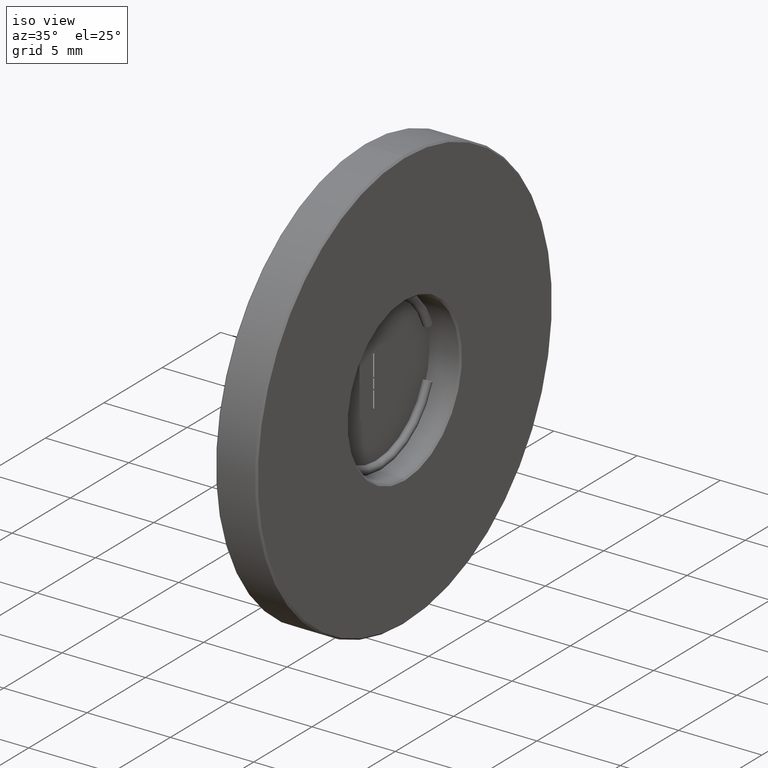
[diagram: clean part render]
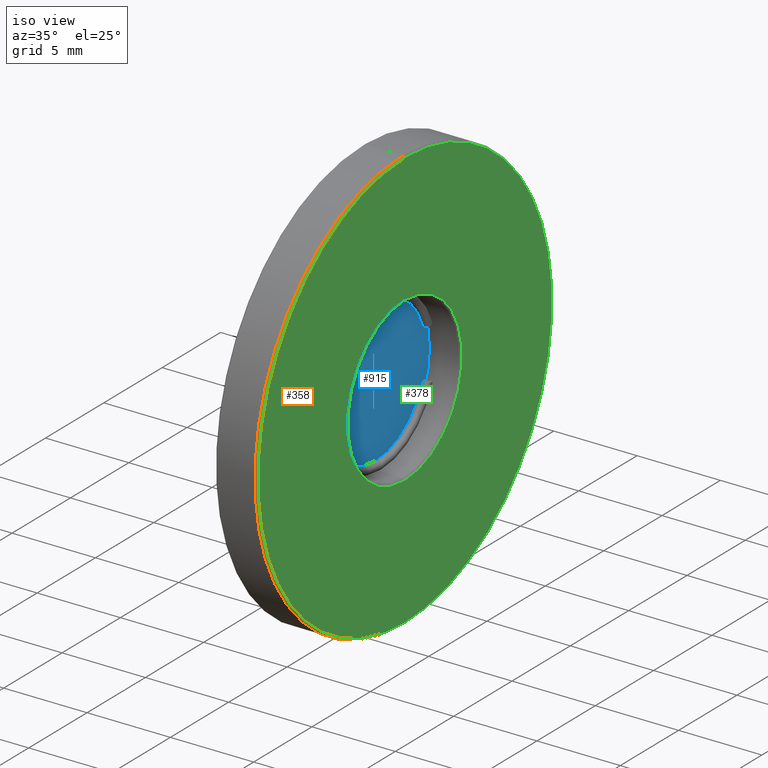
[diagram: same view with three faces highlighted in distinct colors, each labeled with its STEP entity id]
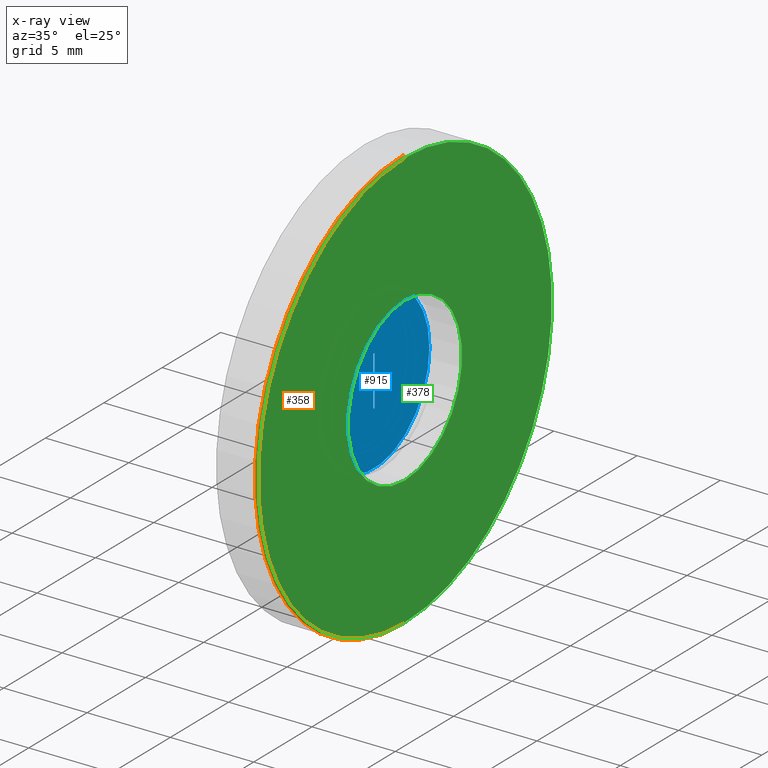
[diagram: x-ray of the same camera — body ghosted, the three highlighted faces saturated]
A machine part, iso view with three faces highlighted in distinct colors.
The next image is the same camera in x-ray (body ghosted, the three faces saturated) — at least one of them is partly hidden behind the body in this view.
Their STEP definitions:

[orange] entity #358 — the highlighted conical surface has half-angle 45 deg.
#5 = VECTOR ( 'NONE', #566, 1000.000000000000000 ) ;
#28 = CARTESIAN_POINT ( 'NONE',  ( -2.434863851252999645, 1.436758841085000071, 25.39999999999999858 ) ) ;
#61 = VERTEX_POINT ( 'NONE', #554 ) ;
#69 = AXIS2_PLACEMENT_3D ( 'NONE', #887, #94, #226 ) ;
#88 = VECTOR ( 'NONE', #273, 1000.000000000000000 ) ;
#94 = DIRECTION ( 'NONE',  ( 1.000000000000000000, 0.000000000000000000, 0.000000000000000000 ) ) ;
#179 = DIRECTION ( 'NONE',  ( 0.000000000000000000, 0.000000000000000000, 1.000000000000000000 ) ) ;
#226 = DIRECTION ( 'NONE',  ( 0.000000000000000000, 0.000000000000000000, -1.000000000000000000 ) ) ;
#254 = CARTESIAN_POINT ( 'NONE',  ( -2.534863851253000178, 1.436758841085001626, 12.69999999999999929 ) ) ;
#268 = EDGE_CURVE ( 'NONE', #61, #642, #359, .T. ) ;
#273 = DIRECTION ( 'NONE',  ( -0.7071067811865415775, 0.000000000000000000, 0.7071067811865535679 ) ) ;
#335 = CARTESIAN_POINT ( 'NONE',  ( -2.434863851252999645, 1.436758841085001626, 12.79999999999999893 ) ) ;
#347 = LINE ( 'NONE', #421, #5 ) ;
#358 = ADVANCED_FACE ( 'NONE', ( #558 ), #589, .T. ) ;
#359 = CIRCLE ( 'NONE', #69, 12.59999999999999964 ) ;
#374 = VERTEX_POINT ( 'NONE', #757 ) ;
#416 = CARTESIAN_POINT ( 'NONE',  ( -2.534863851253000178, 1.436758841085000071, 25.39999999999999858 ) ) ;
#421 = CARTESIAN_POINT ( 'NONE',  ( -2.434863851252999645, 1.436758841085001626, 12.79999999999999893 ) ) ;
#466 = DIRECTION ( 'NONE',  ( -1.000000000000000000, 0.000000000000000000, 0.000000000000000000 ) ) ;
#499 = AXIS2_PLACEMENT_3D ( 'NONE', #416, #702, #910 ) ;
#527 = EDGE_CURVE ( 'NONE', #642, #722, #347, .T. ) ;
#554 = CARTESIAN_POINT ( 'NONE',  ( -2.434863851252999645, 1.436758841085000071, 38.00000000000000000 ) ) ;
#558 = FACE_OUTER_BOUND ( 'NONE', #726, .T. ) ;
#566 = DIRECTION ( 'NONE',  ( -0.7071067811865415775, 8.659560562355003116E-17, -0.7071067811865535679 ) ) ;
#589 = CONICAL_SURFACE ( 'NONE', #720, 12.59999999999999964, 0.7853981633974568277 ) ;
#634 = LINE ( 'NONE', #929, #88 ) ;
#642 = VERTEX_POINT ( 'NONE', #335 ) ;
#702 = DIRECTION ( 'NONE',  ( -1.000000000000000000, 0.000000000000000000, 0.000000000000000000 ) ) ;
#706 = ORIENTED_EDGE ( 'NONE', *, *, #268, .F. ) ;
#717 = EDGE_CURVE ( 'NONE', #722, #374, #825, .T. ) ;
#720 = AXIS2_PLACEMENT_3D ( 'NONE', #28, #466, #179 ) ;
#722 = VERTEX_POINT ( 'NONE', #254 ) ;
#726 = EDGE_LOOP ( 'NONE', ( #815, #706, #861, #733 ) ) ;
#733 = ORIENTED_EDGE ( 'NONE', *, *, #717, .F. ) ;
#736 = EDGE_CURVE ( 'NONE', #61, #374, #634, .T. ) ;
#757 = CARTESIAN_POINT ( 'NONE',  ( -2.534863851253000178, 1.436758841085000071, 38.09999999999999432 ) ) ;
#815 = ORIENTED_EDGE ( 'NONE', *, *, #527, .F. ) ;
#825 = CIRCLE ( 'NONE', #499, 12.69999999999999929 ) ;
#861 = ORIENTED_EDGE ( 'NONE', *, *, #736, .T. ) ;
#887 = CARTESIAN_POINT ( 'NONE',  ( -2.434863851252999645, 1.436758841085000071, 25.39999999999999858 ) ) ;
#910 = DIRECTION ( 'NONE',  ( 0.000000000000000000, 0.000000000000000000, -1.000000000000000000 ) ) ;
#929 = CARTESIAN_POINT ( 'NONE',  ( -2.434863851252999645, 1.436758841085000071, 38.00000000000000000 ) ) ;

[blue] entity #915 — the highlighted planar face has unit normal (1, 0, 0).
#53 = CARTESIAN_POINT ( 'NONE',  ( -4.284863851253000178, 1.486758841084999894, 26.89999999999999858 ) ) ;
#63 = LINE ( 'NONE', #645, #795 ) ;
#79 = ORIENTED_EDGE ( 'NONE', *, *, #476, .F. ) ;
#82 = CARTESIAN_POINT ( 'NONE',  ( -4.284863851253000178, 1.436758841085000071, 25.39999999999999858 ) ) ;
#97 = EDGE_CURVE ( 'NONE', #297, #154, #321, .T. ) ;
#146 = EDGE_CURVE ( 'NONE', #873, #425, #944, .T. ) ;
#154 = VERTEX_POINT ( 'NONE', #600 ) ;
#168 = AXIS2_PLACEMENT_3D ( 'NONE', #400, #924, #473 ) ;
#172 = CARTESIAN_POINT ( 'NONE',  ( -4.284863851253000178, 6.186758841085000071, 25.39999999999999858 ) ) ;
#186 = EDGE_CURVE ( 'NONE', #731, #297, #443, .T. ) ;
#187 = CARTESIAN_POINT ( 'NONE',  ( -4.284863851253000178, 1.436758841085000071, 25.39999999999999858 ) ) ;
#241 = DIRECTION ( 'NONE',  ( 0.000000000000000000, -1.000000000000000000, 0.000000000000000000 ) ) ;
#243 = FACE_BOUND ( 'NONE', #721, .T. ) ;
#274 = AXIS2_PLACEMENT_3D ( 'NONE', #187, #540, #395 ) ;
#297 = VERTEX_POINT ( 'NONE', #474 ) ;
#301 = VERTEX_POINT ( 'NONE', #906 ) ;
#321 = LINE ( 'NONE', #678, #650 ) ;
#330 = CARTESIAN_POINT ( 'NONE',  ( -4.284863851253000178, -3.313241158914999929, 25.39999999999999858 ) ) ;
#344 = ORIENTED_EDGE ( 'NONE', *, *, #468, .F. ) ;
#354 = DIRECTION ( 'NONE',  ( 0.000000000000000000, 1.000000000000000000, 0.000000000000000000 ) ) ;
#362 = AXIS2_PLACEMENT_3D ( 'NONE', #82, #514, #241 ) ;
#395 = DIRECTION ( 'NONE',  ( 0.000000000000000000, 0.000000000000000000, -1.000000000000000000 ) ) ;
#400 = CARTESIAN_POINT ( 'NONE',  ( -4.284863851253000178, 1.436758841085000071, 25.39999999999999858 ) ) ;
#425 = VERTEX_POINT ( 'NONE', #330 ) ;
#440 = VECTOR ( 'NONE', #609, 1000.000000000000000 ) ;
#442 = EDGE_LOOP ( 'NONE', ( #605, #816 ) ) ;
#443 = LINE ( 'NONE', #891, #440 ) ;
#468 = EDGE_CURVE ( 'NONE', #301, #731, #576, .T. ) ;
#473 = DIRECTION ( 'NONE',  ( 0.000000000000000000, -1.000000000000000000, 0.000000000000000000 ) ) ;
#474 = CARTESIAN_POINT ( 'NONE',  ( -4.284863851253000178, 1.386758841085000027, 26.89999999999999858 ) ) ;
#476 = EDGE_CURVE ( 'NONE', #154, #301, #63, .T. ) ;
#487 = ORIENTED_EDGE ( 'NONE', *, *, #186, .F. ) ;
#514 = DIRECTION ( 'NONE',  ( 1.000000000000000000, 0.000000000000000000, 0.000000000000000000 ) ) ;
#540 = DIRECTION ( 'NONE',  ( 1.000000000000000000, 0.000000000000000000, 0.000000000000000000 ) ) ;
#556 = FACE_OUTER_BOUND ( 'NONE', #442, .T. ) ;
#571 = EDGE_CURVE ( 'NONE', #425, #873, #830, .T. ) ;
#576 = LINE ( 'NONE', #856, #700 ) ;
#600 = CARTESIAN_POINT ( 'NONE',  ( -4.284863851253000178, 1.386758841085000027, 23.89999999999999858 ) ) ;
#605 = ORIENTED_EDGE ( 'NONE', *, *, #146, .T. ) ;
#609 = DIRECTION ( 'NONE',  ( 0.000000000000000000, -1.000000000000000000, 0.000000000000000000 ) ) ;
#645 = CARTESIAN_POINT ( 'NONE',  ( -4.284863851253000178, 1.486758841084999894, 23.89999999999999858 ) ) ;
#650 = VECTOR ( 'NONE', #843, 1000.000000000000000 ) ;
#678 = CARTESIAN_POINT ( 'NONE',  ( -4.284863851253000178, 1.386758841085000027, 26.89999999999999858 ) ) ;
#700 = VECTOR ( 'NONE', #936, 1000.000000000000000 ) ;
#721 = EDGE_LOOP ( 'NONE', ( #344, #79, #938, #487 ) ) ;
#731 = VERTEX_POINT ( 'NONE', #53 ) ;
#795 = VECTOR ( 'NONE', #354, 1000.000000000000000 ) ;
#816 = ORIENTED_EDGE ( 'NONE', *, *, #571, .T. ) ;
#830 = CIRCLE ( 'NONE', #168, 4.750000000000000000 ) ;
#834 = PLANE ( 'NONE',  #274 ) ;
#843 = DIRECTION ( 'NONE',  ( 0.000000000000000000, 0.000000000000000000, -1.000000000000000000 ) ) ;
#856 = CARTESIAN_POINT ( 'NONE',  ( -4.284863851253000178, 1.486758841084999894, 26.89999999999999858 ) ) ;
#873 = VERTEX_POINT ( 'NONE', #172 ) ;
#891 = CARTESIAN_POINT ( 'NONE',  ( -4.284863851253000178, 1.486758841084999894, 26.89999999999999858 ) ) ;
#906 = CARTESIAN_POINT ( 'NONE',  ( -4.284863851253000178, 1.486758841084999894, 23.89999999999999858 ) ) ;
#915 = ADVANCED_FACE ( 'NONE', ( #243, #556 ), #834, .T. ) ;
#924 = DIRECTION ( 'NONE',  ( 1.000000000000000000, 0.000000000000000000, 0.000000000000000000 ) ) ;
#936 = DIRECTION ( 'NONE',  ( 0.000000000000000000, 0.000000000000000000, 1.000000000000000000 ) ) ;
#938 = ORIENTED_EDGE ( 'NONE', *, *, #97, .F. ) ;
#944 = CIRCLE ( 'NONE', #362, 4.750000000000000000 ) ;

[green] entity #378 — the highlighted planar face has unit normal (1, 0, 0).
#24 = EDGE_CURVE ( 'NONE', #137, #934, #270, .T. ) ;
#32 = PLANE ( 'NONE',  #509 ) ;
#49 = FACE_BOUND ( 'NONE', #352, .T. ) ;
#61 = VERTEX_POINT ( 'NONE', #554 ) ;
#69 = AXIS2_PLACEMENT_3D ( 'NONE', #887, #94, #226 ) ;
#78 = CARTESIAN_POINT ( 'NONE',  ( -2.434863851252999645, 1.436758841085000071, 20.49999999999999645 ) ) ;
#94 = DIRECTION ( 'NONE',  ( 1.000000000000000000, 0.000000000000000000, 0.000000000000000000 ) ) ;
#132 = CARTESIAN_POINT ( 'NONE',  ( -2.434863851252999645, 1.436758841085000071, 25.39999999999999858 ) ) ;
#137 = VERTEX_POINT ( 'NONE', #78 ) ;
#209 = AXIS2_PLACEMENT_3D ( 'NONE', #480, #840, #493 ) ;
#223 = DIRECTION ( 'NONE',  ( -1.000000000000000000, 0.000000000000000000, 0.000000000000000000 ) ) ;
#226 = DIRECTION ( 'NONE',  ( 0.000000000000000000, 0.000000000000000000, -1.000000000000000000 ) ) ;
#255 = DIRECTION ( 'NONE',  ( 1.000000000000000000, 0.000000000000000000, 0.000000000000000000 ) ) ;
#268 = EDGE_CURVE ( 'NONE', #61, #642, #359, .T. ) ;
#270 = CIRCLE ( 'NONE', #711, 4.900000000000001243 ) ;
#281 = ORIENTED_EDGE ( 'NONE', *, *, #24, .T. ) ;
#323 = CARTESIAN_POINT ( 'NONE',  ( -2.434863851252999645, 1.436758841085000071, 25.39999999999999858 ) ) ;
#333 = ORIENTED_EDGE ( 'NONE', *, *, #268, .T. ) ;
#335 = CARTESIAN_POINT ( 'NONE',  ( -2.434863851252999645, 1.436758841085001626, 12.79999999999999893 ) ) ;
#352 = EDGE_LOOP ( 'NONE', ( #281, #450 ) ) ;
#359 = CIRCLE ( 'NONE', #69, 12.59999999999999964 ) ;
#378 = ADVANCED_FACE ( 'NONE', ( #49, #852 ), #32, .T. ) ;
#381 = ORIENTED_EDGE ( 'NONE', *, *, #636, .T. ) ;
#383 = CIRCLE ( 'NONE', #916, 4.900000000000001243 ) ;
#426 = DIRECTION ( 'NONE',  ( -1.000000000000000000, 0.000000000000000000, 0.000000000000000000 ) ) ;
#450 = ORIENTED_EDGE ( 'NONE', *, *, #741, .T. ) ;
#480 = CARTESIAN_POINT ( 'NONE',  ( -2.434863851252999645, 1.436758841085000071, 25.39999999999999858 ) ) ;
#493 = DIRECTION ( 'NONE',  ( 0.000000000000000000, 0.000000000000000000, -1.000000000000000000 ) ) ;
#500 = EDGE_LOOP ( 'NONE', ( #333, #381 ) ) ;
#509 = AXIS2_PLACEMENT_3D ( 'NONE', #323, #255, #753 ) ;
#516 = DIRECTION ( 'NONE',  ( 0.000000000000000000, 0.000000000000000000, -1.000000000000000000 ) ) ;
#554 = CARTESIAN_POINT ( 'NONE',  ( -2.434863851252999645, 1.436758841085000071, 38.00000000000000000 ) ) ;
#592 = CARTESIAN_POINT ( 'NONE',  ( -2.434863851252999645, 1.436758841085000071, 25.39999999999999858 ) ) ;
#616 = CARTESIAN_POINT ( 'NONE',  ( -2.434863851252999645, 1.436758841085000737, 30.30000000000000071 ) ) ;
#636 = EDGE_CURVE ( 'NONE', #642, #61, #911, .T. ) ;
#642 = VERTEX_POINT ( 'NONE', #335 ) ;
#711 = AXIS2_PLACEMENT_3D ( 'NONE', #592, #223, #516 ) ;
#715 = DIRECTION ( 'NONE',  ( 0.000000000000000000, 0.000000000000000000, -1.000000000000000000 ) ) ;
#741 = EDGE_CURVE ( 'NONE', #934, #137, #383, .T. ) ;
#753 = DIRECTION ( 'NONE',  ( 0.000000000000000000, 1.000000000000000000, 0.000000000000000000 ) ) ;
#840 = DIRECTION ( 'NONE',  ( 1.000000000000000000, 0.000000000000000000, 0.000000000000000000 ) ) ;
#852 = FACE_OUTER_BOUND ( 'NONE', #500, .T. ) ;
#887 = CARTESIAN_POINT ( 'NONE',  ( -2.434863851252999645, 1.436758841085000071, 25.39999999999999858 ) ) ;
#911 = CIRCLE ( 'NONE', #209, 12.59999999999999964 ) ;
#916 = AXIS2_PLACEMENT_3D ( 'NONE', #132, #426, #715 ) ;
#934 = VERTEX_POINT ( 'NONE', #616 ) ;